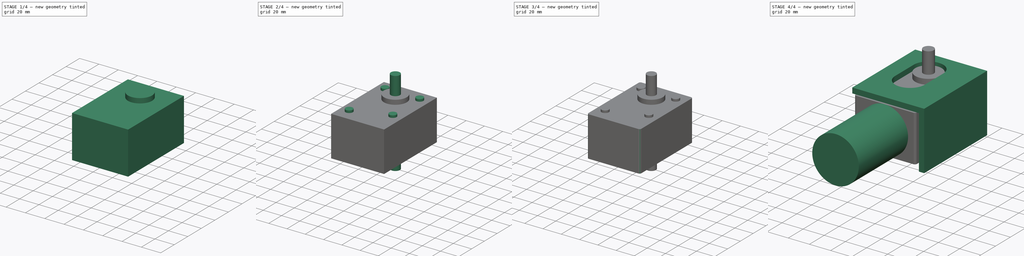
[diagram: build sequence overview — one tinted view per stage of 4, left to right]
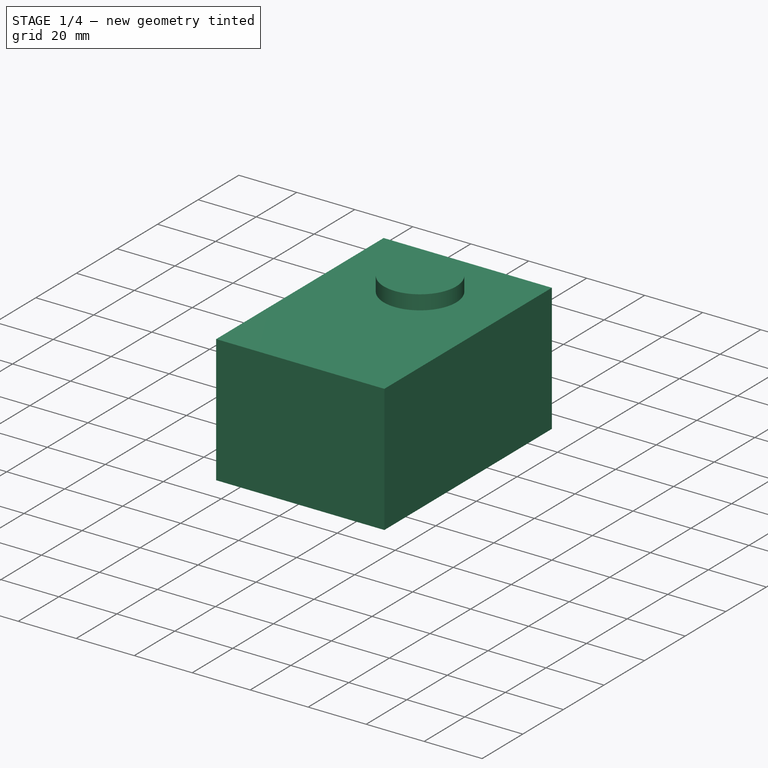
[diagram: stage 1 of 4 — iso view after this stage's code; geometry added in this stage tinted green]
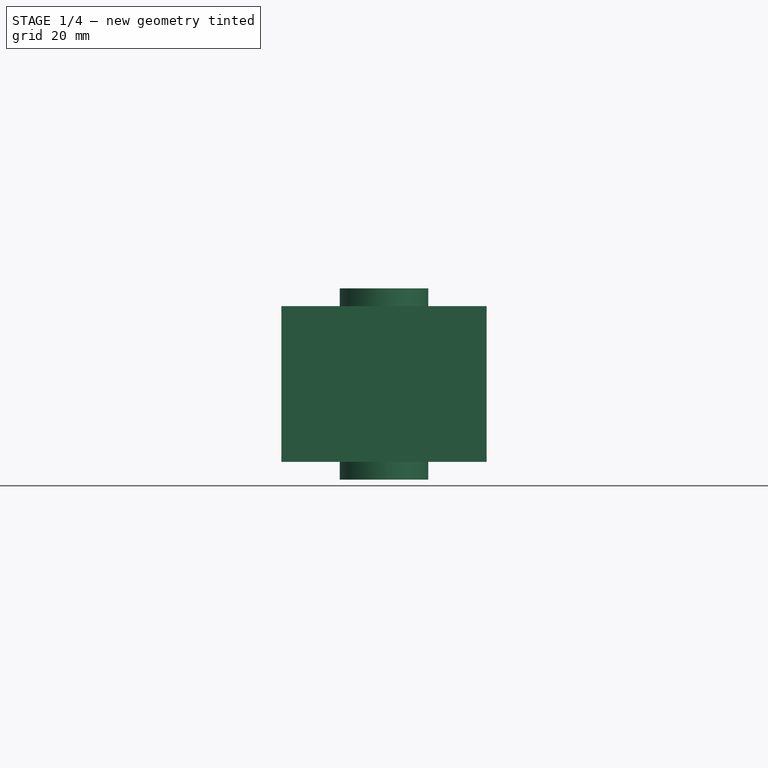
[diagram: stage 1 of 4 — front view after this stage's code; geometry added in this stage tinted green]
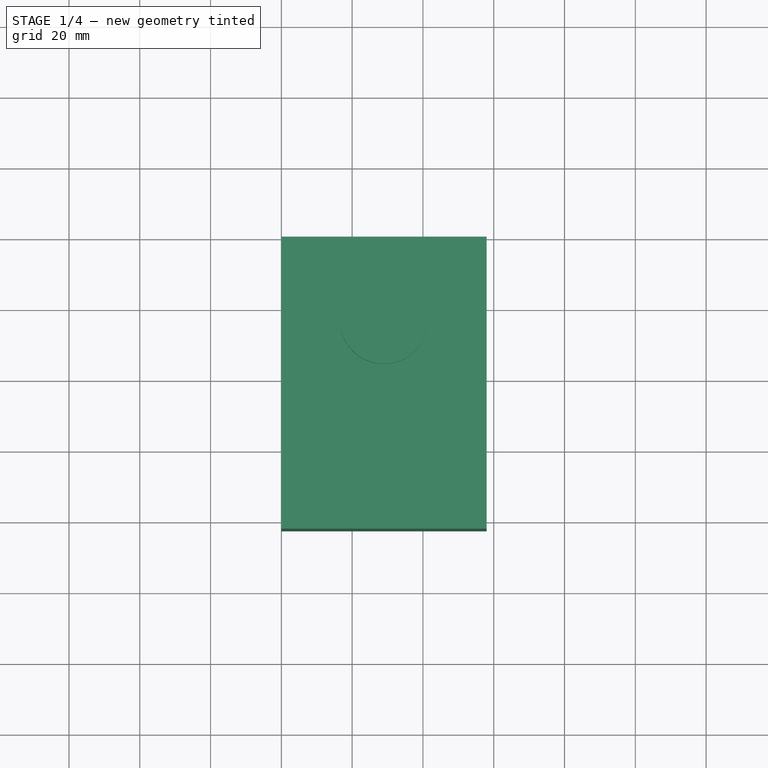
[diagram: stage 1 of 4 — top view after this stage's code; geometry added in this stage tinted green]
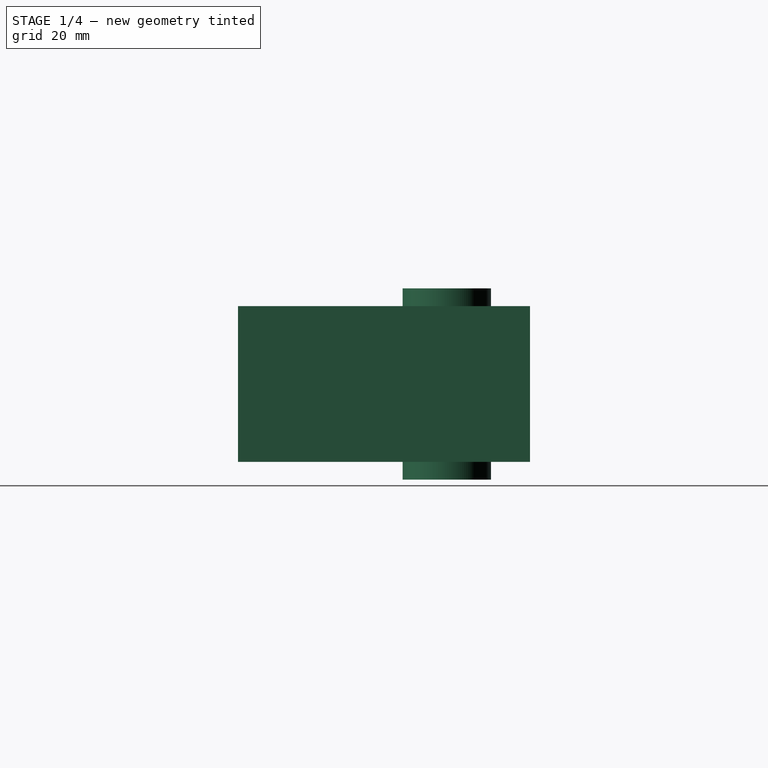
[diagram: stage 1 of 4 — right view after this stage's code; geometry added in this stage tinted green]
FCSTD DOCUMENT  (FreeCAD 0.20R29410 (Git))
Label: motor24v
License: All rights reserved
LicenseURL: http://en.wikipedia.org/wiki/All_rights_reserved
objects: Sketcher::SketchObject×7, PartDesign::Pad×7, PartDesign::Mirrored×3, App::Part×1, PartDesign::Fillet×1, PartDesign::Body×1
note: 27 computed .brp shape members not serialized (recipe doc carries the construction recipe); baked Part::Feature solids carry a one-line shape summary decoded from their .brp

FEATURE [App::Part] Part
  Origin = -> Origin
FEATURE [Sketcher::SketchObject] Sketch
  FullyConstrained = true
  MapMode = 5
  Support = -> [XY_Plane001]
  sketch-geometry (4):
    g0: LineSegment StartX=0 StartY=0 StartZ=0 EndX=58 EndY=0 EndZ=0
    g1: LineSegment StartX=58 StartY=0 StartZ=0 EndX=58 EndY=-82.5 EndZ=0
    g2: LineSegment StartX=58 StartY=-82.5 StartZ=0 EndX=0 EndY=-82.5 EndZ=0
    g3: LineSegment StartX=0 StartY=-82.5 StartZ=0 EndX=0 EndY=0 EndZ=0
  constraints (11):
    c: Coincident(g0,g1)
    c: Coincident(g1,g2)
    c: Coincident(g2,g3)
    c: Coincident(g3,g0)
    c: Horizontal(g0)
    c: Horizontal(g2)
    c: Vertical(g1)
    c: Vertical(g3)
    c: Coincident(g0,g-1)
    c: DistanceX(g0,g0) = 58
    c: DistanceY(g1,g1) = 82.5
FEATURE [PartDesign::Pad] Pad
  Direction = (0,0,1)
  Length = 22
  Length2 = 22
  Profile = -> Sketch
  ReferenceAxis = -> Sketch [N_Axis]
  Type = 4
FEATURE [Sketcher::SketchObject] Sketch001
  FullyConstrained = true
  MapMode = 5
  Placement = pos=(0,0,22) rot=(0,0,1;0rad)
  Support = -> [Pad]
  sketch-geometry (1):
    g0: Circle CenterX=29 CenterY=-23.5 CenterZ=0 NormalX=0 NormalY=0 NormalZ=1 AngleXU=0 Radius=12.5
  constraints (3):
    c: DistanceX(g-1,g0) = 29
    c: DistanceY(g0,g-1) = 23.5
    c: Diameter(g0) = 25
FEATURE [PartDesign::Pad] Pad001
  BaseFeature = -> Pad
  Direction = (0,0,1)
  Length = 5
  Length2 = 10
  Profile = -> Sketch001
  ReferenceAxis = -> Sketch001 [N_Axis]
  Type = 0
FEATURE [PartDesign::Mirrored] Mirrored
  BaseFeature = -> Pad001
  MirrorPlane = -> XY_Plane001
  Originals = -> [Pad001]
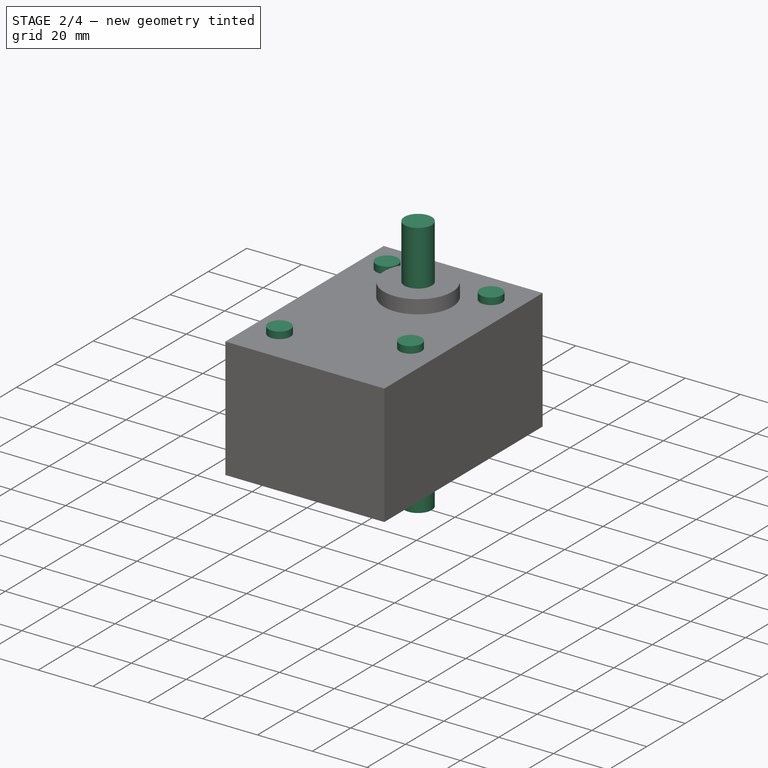
[diagram: stage 2 of 4 — iso view after this stage's code; geometry added in this stage tinted green]
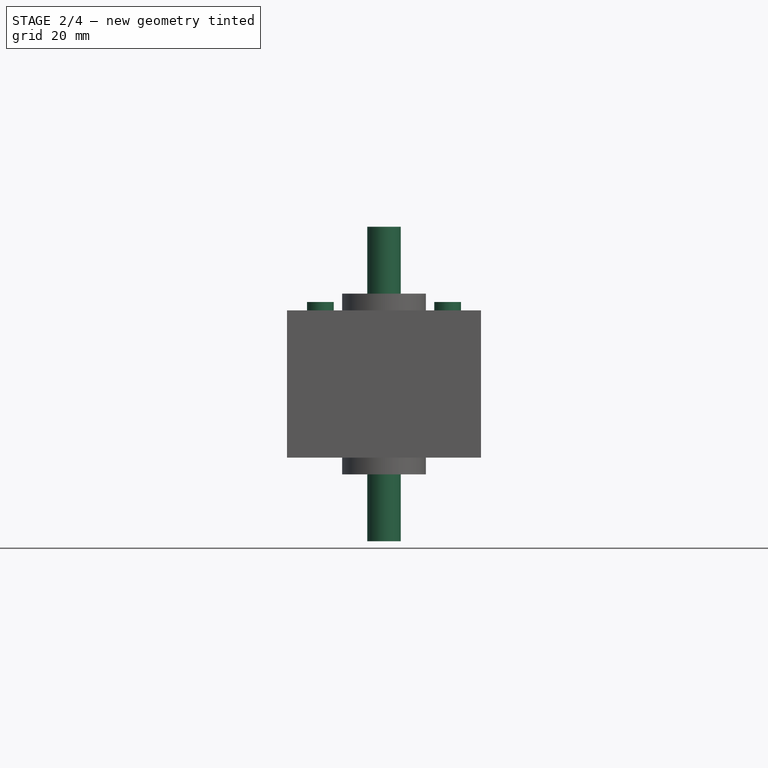
[diagram: stage 2 of 4 — front view after this stage's code; geometry added in this stage tinted green]
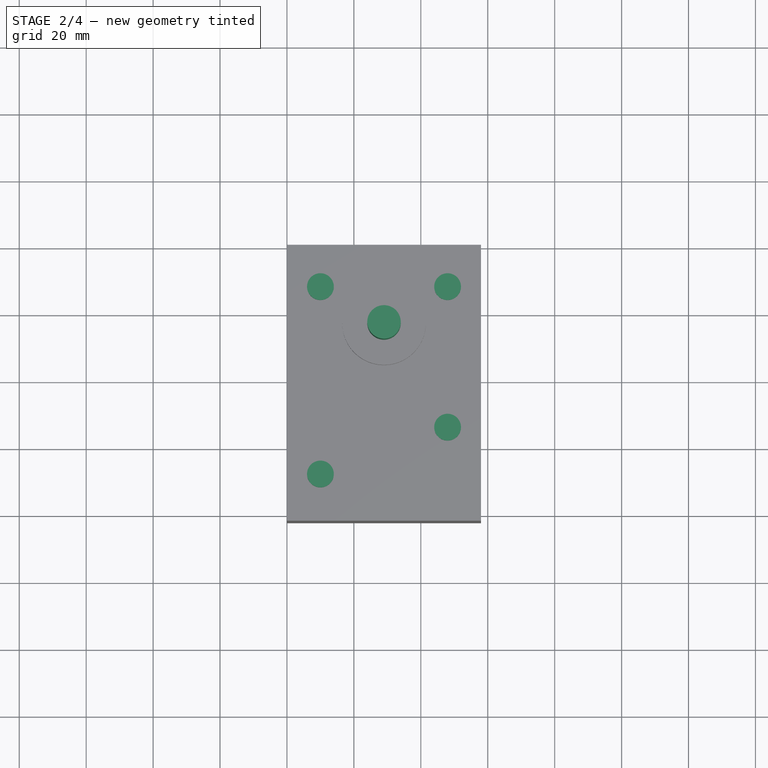
[diagram: stage 2 of 4 — top view after this stage's code; geometry added in this stage tinted green]
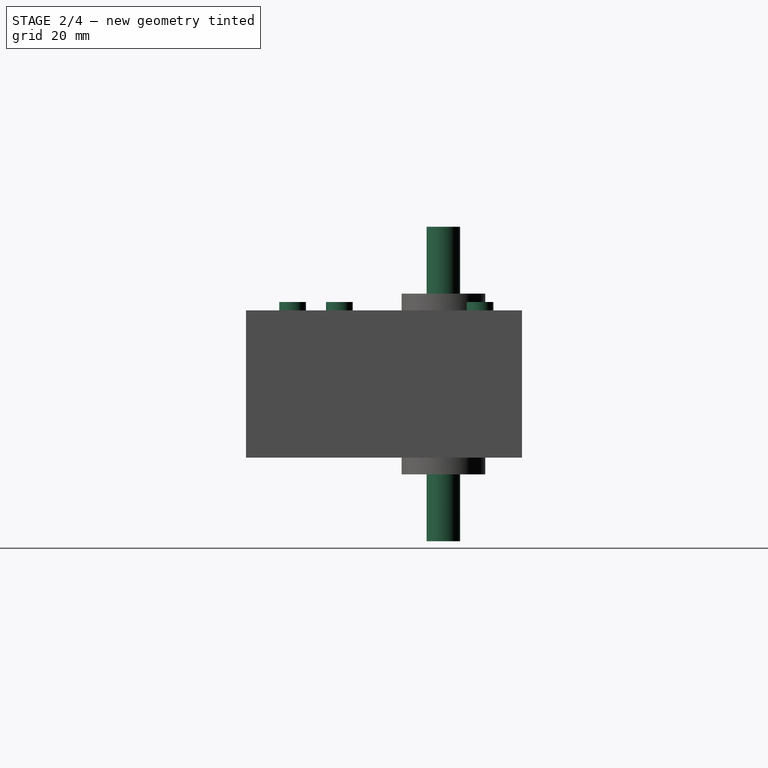
[diagram: stage 2 of 4 — right view after this stage's code; geometry added in this stage tinted green]
FEATURE [Sketcher::SketchObject] Sketch002
  FullyConstrained = true
  MapMode = 5
  Placement = pos=(0,0,27) rot=(0,0,1;0rad)
  Support = -> [Mirrored]
  sketch-geometry (1):
    g0: Circle CenterX=29 CenterY=-23.5 CenterZ=0 NormalX=0 NormalY=0 NormalZ=1 AngleXU=0 Radius=5
  constraints (3):
    c: Diameter(g0) = 10
    c: DistanceX(g-1,g0) = 29
    c: DistanceY(g0,g-1) = 23.5
FEATURE [PartDesign::Pad] Pad002
  BaseFeature = -> Mirrored
  Direction = (0,0,1)
  Length = 20
  Length2 = 10
  Profile = -> Sketch002
  ReferenceAxis = -> Sketch002 [N_Axis]
  Type = 0
FEATURE [PartDesign::Mirrored] Mirrored001
  BaseFeature = -> Pad002
  MirrorPlane = -> XY_Plane001
  Originals = -> [Pad002]
FEATURE [Sketcher::SketchObject] Sketch003
  FullyConstrained = true
  MapMode = 5
  Placement = pos=(0,0,22) rot=(0,0,1;0rad)
  Support = -> [Mirrored001]
  sketch-geometry (4):
    g0: Circle CenterX=10 CenterY=-12.57 CenterZ=0 NormalX=0 NormalY=0 NormalZ=1 AngleXU=0 Radius=4
    g1: Circle CenterX=48 CenterY=-12.57 CenterZ=0 NormalX=0 NormalY=0 NormalZ=1 AngleXU=0 Radius=4
    g2: Circle CenterX=10 CenterY=-68.57 CenterZ=0 NormalX=0 NormalY=0 NormalZ=1 AngleXU=0 Radius=4
    g3: Circle CenterX=48 CenterY=-54.57 CenterZ=0 NormalX=0 NormalY=0 NormalZ=1 AngleXU=0 Radius=4
  constraints (12):
    c: Diameter(g0) = 8
    c: Diameter(g1) = 8
    c: Diameter(g3) = 8
    c: Diameter(g2) = 8
    c: Vertical(g0,g2)
    c: Vertical(g1,g3)
    c: Horizontal(g1,g0)
    c: DistanceX(g-1,g0) = 10
    c: DistanceX(g0,g1) = 38
    c: DistanceY(g3,g1) = 42
    c: DistanceY(g2,g0) = 56
    c: DistanceY(g0,g-1) = 12.57
FEATURE [PartDesign::Pad] Pad003
  BaseFeature = -> Mirrored001
  Direction = (0,0,1)
  Length = 2.5
  Length2 = 10
  Profile = -> Sketch003
  ReferenceAxis = -> Sketch003 [N_Axis]
  Type = 0
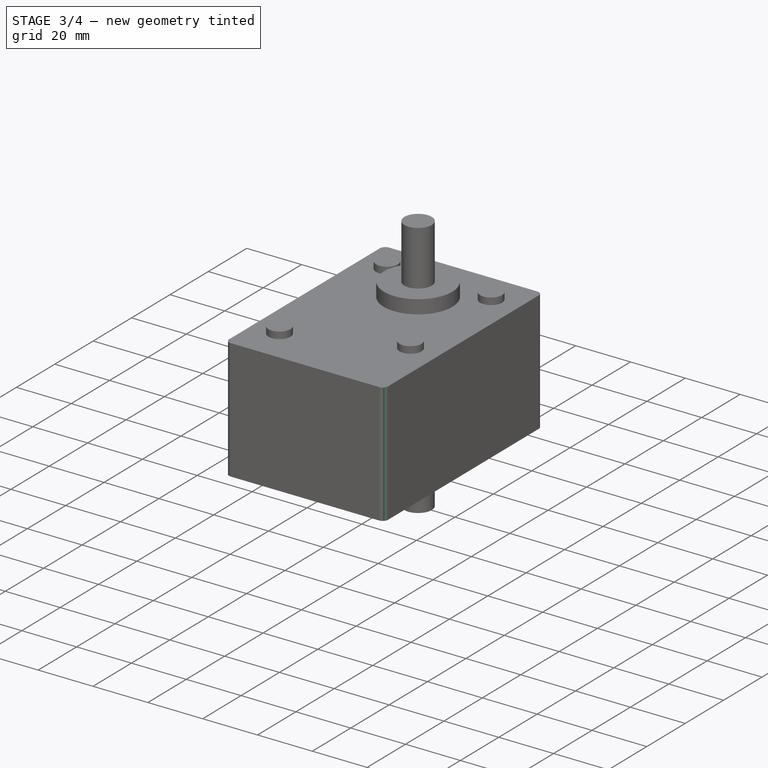
[diagram: stage 3 of 4 — iso view after this stage's code; geometry added in this stage tinted green]
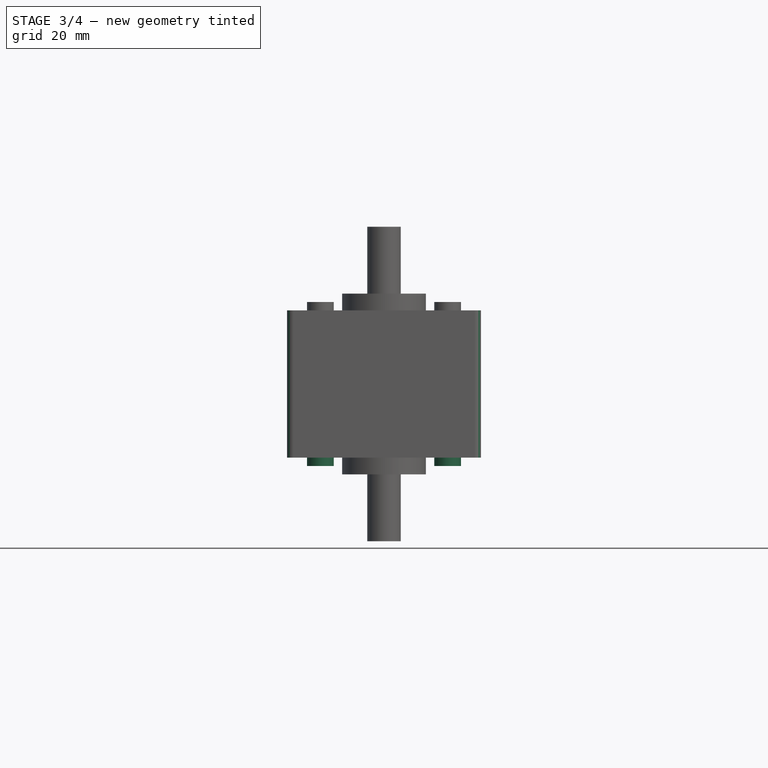
[diagram: stage 3 of 4 — front view after this stage's code; geometry added in this stage tinted green]
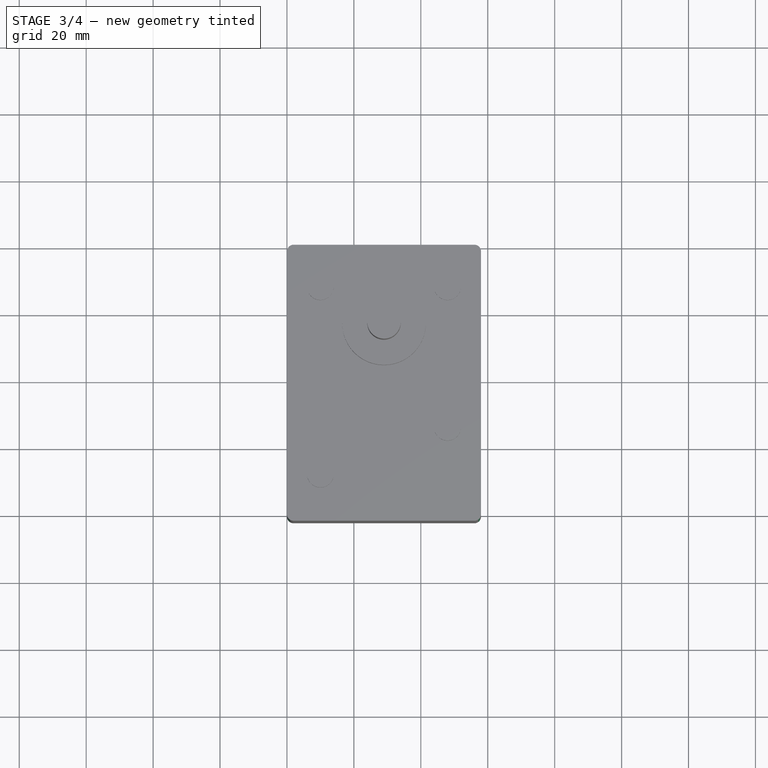
[diagram: stage 3 of 4 — top view after this stage's code; geometry added in this stage tinted green]
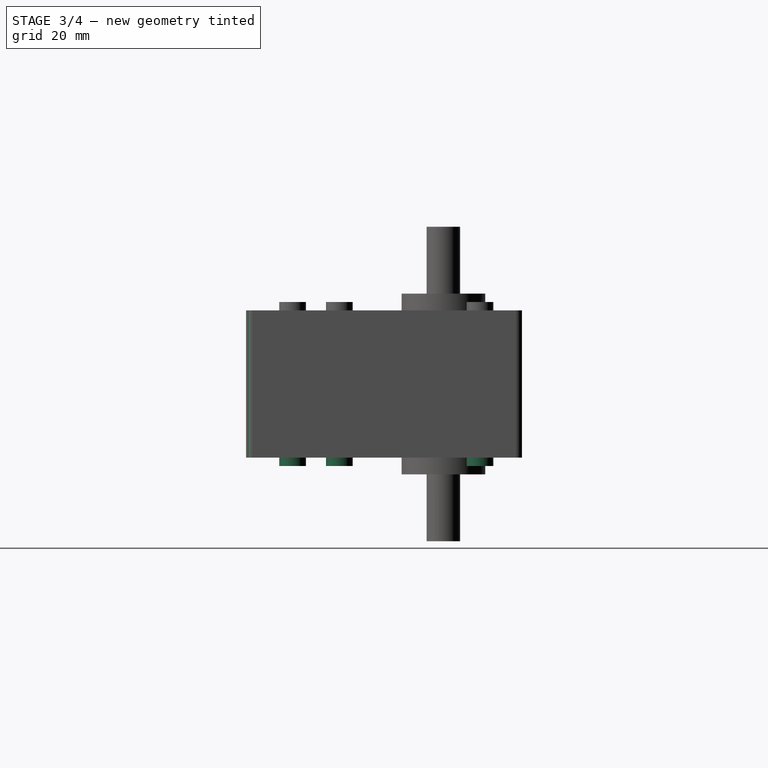
[diagram: stage 3 of 4 — right view after this stage's code; geometry added in this stage tinted green]
FEATURE [PartDesign::Mirrored] Mirrored002
  BaseFeature = -> Pad003
  MirrorPlane = -> XY_Plane001
  Originals = -> [Pad003]
FEATURE [PartDesign::Fillet] Fillet
  Base = -> Mirrored002 [Edge2,Edge1,Edge8,Edge5]
  BaseFeature = -> Mirrored002
  Radius = 2
  SupportTransform = false
  UseAllEdges = false
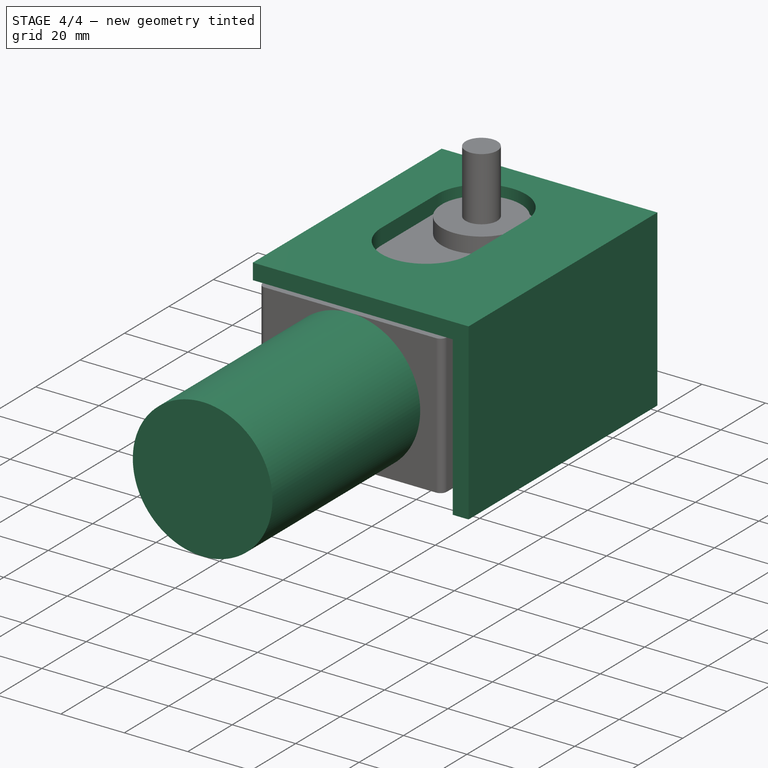
[diagram: stage 4 of 4 — iso view after this stage's code; geometry added in this stage tinted green]
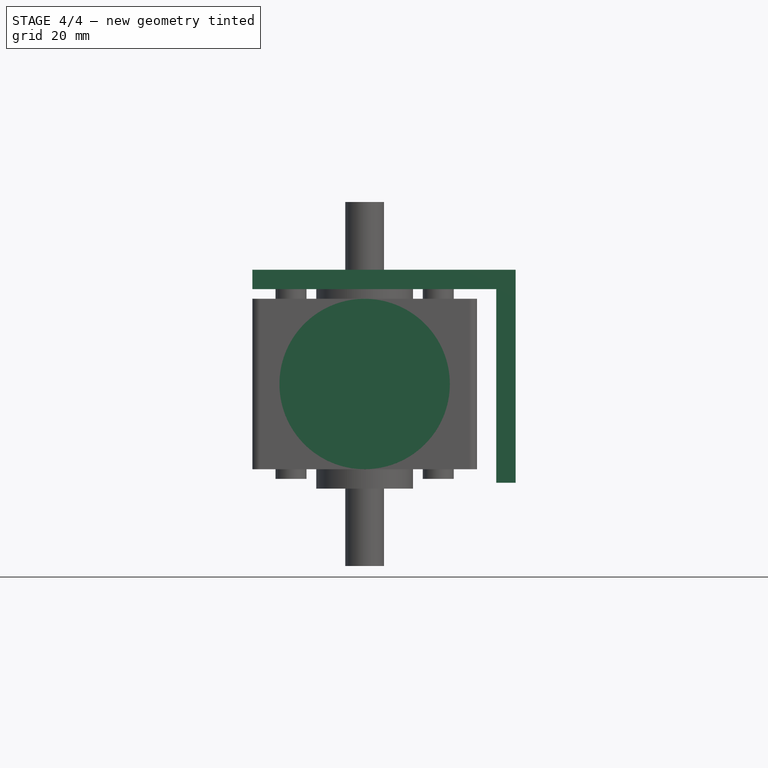
[diagram: stage 4 of 4 — front view after this stage's code; geometry added in this stage tinted green]
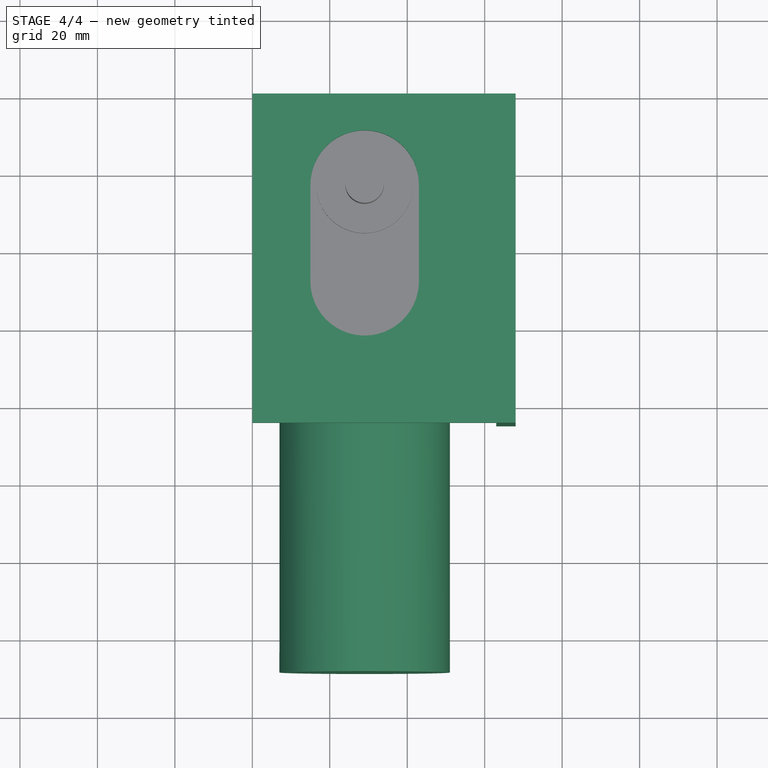
[diagram: stage 4 of 4 — top view after this stage's code; geometry added in this stage tinted green]
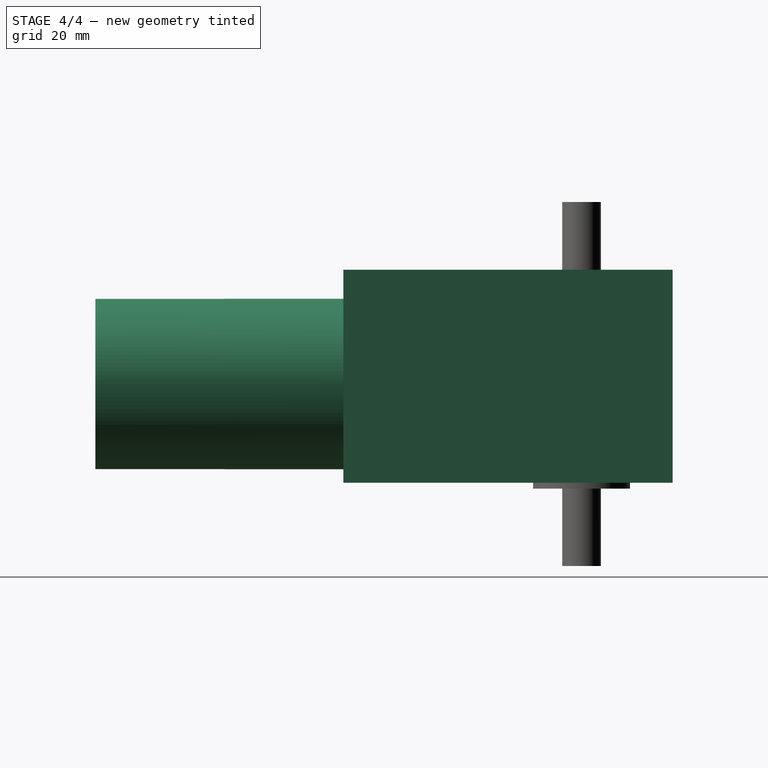
[diagram: stage 4 of 4 — right view after this stage's code; geometry added in this stage tinted green]
FEATURE [Sketcher::SketchObject] Sketch004
  FullyConstrained = true
  MapMode = 5
  Placement = pos=(0,-82.5,0) rot=(1,0,0;1.5708rad)
  Support = -> [Fillet]
  sketch-geometry (1):
    g0: Circle CenterX=29 CenterY=0 CenterZ=0 NormalX=0 NormalY=0 NormalZ=1 AngleXU=0 Radius=22
  constraints (3):
    c: PointOnObject(g0,g-1)
    c: Diameter(g0) = 44
    c: DistanceX(g-1,g0) = 29
FEATURE [PartDesign::Pad] Pad004
  BaseFeature = -> Fillet
  Direction = (0,-1,2e-16)
  Length = 66.53
  Length2 = 10
  Profile = -> Sketch004
  ReferenceAxis = -> Sketch004 [N_Axis]
  Type = 0
FEATURE [Sketcher::SketchObject] Sketch005
  FullyConstrained = true
  MapMode = 5
  Placement = pos=(0,0,24.5) rot=(0,0,1;0rad)
  Support = -> [Pad004]
  sketch-geometry (8):
    g0: LineSegment StartX=0 StartY=0 StartZ=0 EndX=68 EndY=0 EndZ=0
    g1: LineSegment StartX=68 StartY=0 StartZ=0 EndX=68 EndY=-85 EndZ=0
    g2: LineSegment StartX=68 StartY=-85 StartZ=0 EndX=0 EndY=-85 EndZ=0
    g3: LineSegment StartX=0 StartY=-85 StartZ=0 EndX=0 EndY=0 EndZ=0
    g4: ArcOfCircle CenterX=29 CenterY=-23.5 CenterZ=0 NormalX=0 NormalY=0 NormalZ=1 AngleXU=0 Radius=14 StartAngle=1e-16 EndAngle=3.14159
    g5: ArcOfCircle CenterX=29 CenterY=-48.5 CenterZ=0 NormalX=0 NormalY=0 NormalZ=1 AngleXU=0 Radius=14 StartAngle=3.14159 EndAngle=6.28319
    g6: LineSegment StartX=15 StartY=-23.5 StartZ=0 EndX=15 EndY=-48.5 EndZ=0
    g7: LineSegment StartX=43 StartY=-48.5 StartZ=0 EndX=43 EndY=-23.5 EndZ=0
  constraints (21):
    c: Coincident(g0,g1)
    c: Coincident(g1,g2)
    c: Coincident(g2,g3)
    c: Coincident(g3,g0)
    c: Horizontal(g0)
    c: Horizontal(g2)
    c: Vertical(g1)
    c: Vertical(g3)
    c: Coincident(g0,g-1)
    c: DistanceX(g0,g0) = 68
    c: DistanceY(g1,g1) = 85
    c: Tangent(g4,g6) = -1.5708
    c: Tangent(g6,g5) = -1.5708
    c: Tangent(g5,g7) = -1.5708
    c: Tangent(g7,g4) = -1.5708
    c: Equal(g4,g5)
    c: Vertical(g6)
    c: Radius(g4) = 14
    c: DistanceX(g0,g4) = 29
    c: DistanceY(g4,g0) = 23.5
    c: DistanceY(g5,g4) = 25
FEATURE [PartDesign::Pad] Pad005
  BaseFeature = -> Pad004
  Direction = (0,0,1)
  Length = 5
  Length2 = 10
  Profile = -> Sketch005
  ReferenceAxis = -> Sketch005 [N_Axis]
  Type = 0
FEATURE [Sketcher::SketchObject] Sketch006
  FullyConstrained = true
  MapMode = 5
  Placement = pos=(0,0,24.5) rot=(1,0,0;3.14159rad)
  Support = -> [Pad005]
  sketch-geometry (4):
    g0: LineSegment StartX=68 StartY=0 StartZ=0 EndX=63 EndY=0 EndZ=0
    g1: LineSegment StartX=63 StartY=0 StartZ=0 EndX=63 EndY=85 EndZ=0
    g2: LineSegment StartX=63 StartY=85 StartZ=0 EndX=68 EndY=85 EndZ=0
    g3: LineSegment StartX=68 StartY=85 StartZ=0 EndX=68 EndY=0 EndZ=0
  constraints (12):
    c: Coincident(g0,g1)
    c: Coincident(g1,g2)
    c: Coincident(g2,g3)
    c: Coincident(g3,g0)
    c: Horizontal(g0)
    c: Horizontal(g2)
    c: Vertical(g1)
    c: Vertical(g3)
    c: PointOnObject(g0,g-1)
    c: DistanceY(g3,g3) = 85
    c: DistanceX(g0,g0) = 5
    c: DistanceX(g-1,g0) = 63
FEATURE [PartDesign::Pad] Pad006
  BaseFeature = -> Pad005
  Direction = (0,0,-1)
  Length = 50
  Length2 = 10
  Profile = -> Sketch006
  ReferenceAxis = -> Sketch006 [N_Axis]
  Type = 0
FEATURE [PartDesign::Body] Body
  Group = -> [Sketch,Pad,Sketch001,Pad001,Mirrored,Sketch002,Pad002,Mirrored001,Sketch003,Pad003,Mirrored002,Fillet,Sketch004,Pad004,Sketch005,Pad005,Sketch006,Pad006]
  Origin = -> Origin001
  Tip = -> Pad006
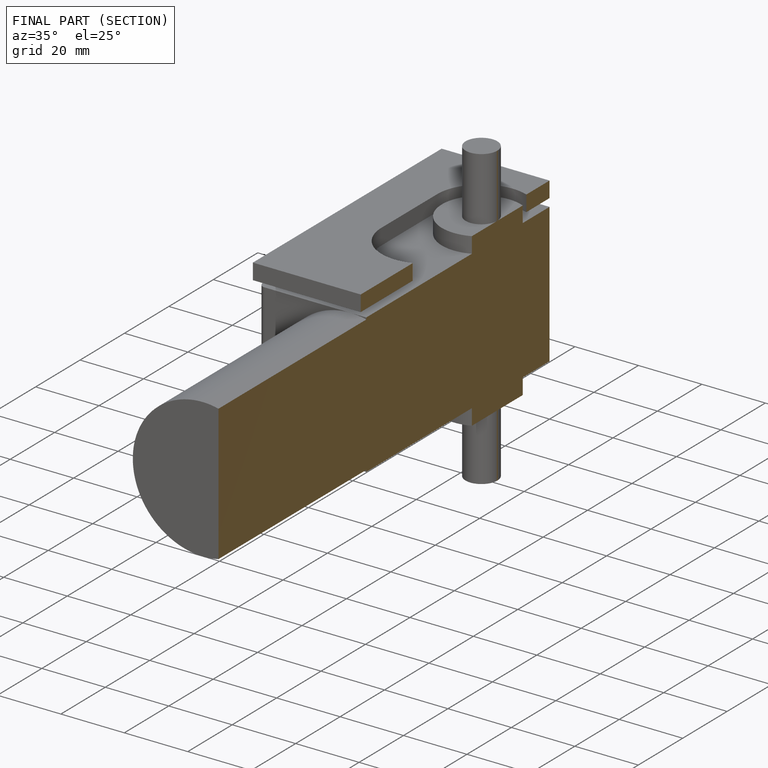
[diagram: finished part — half-section view (interior)]
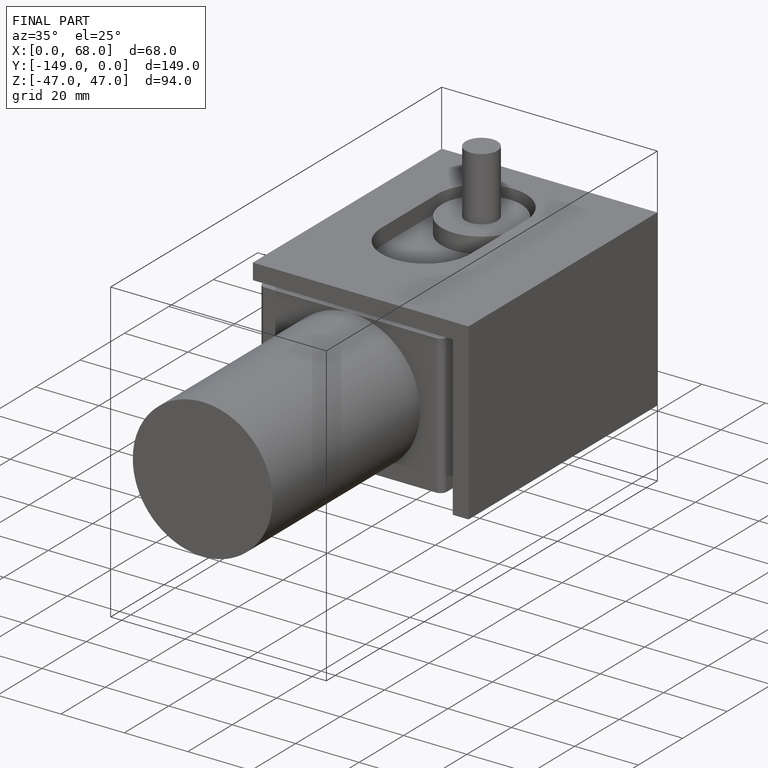
[diagram: finished part — iso view with bounding-box wireframe]
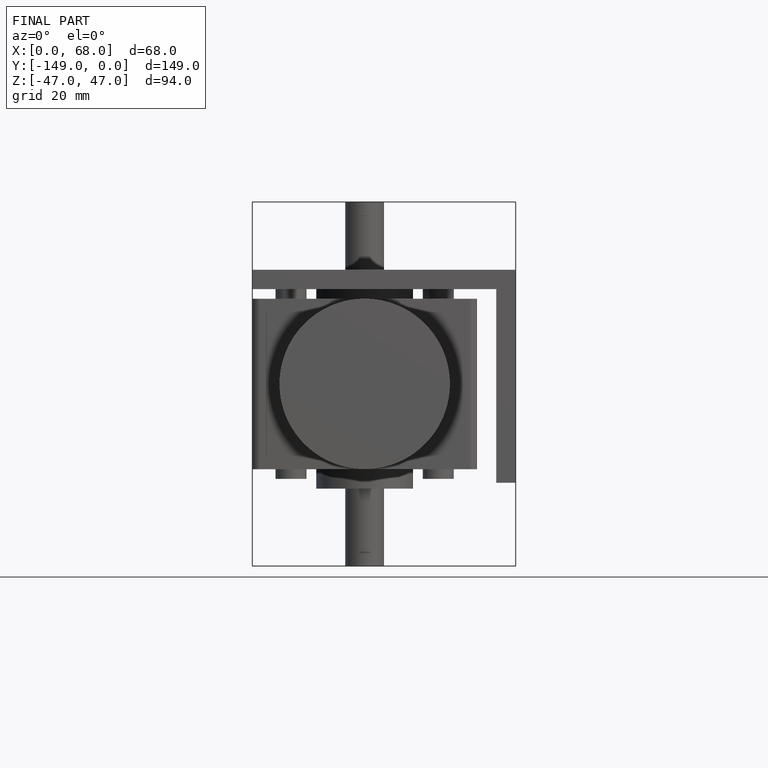
[diagram: finished part — front view with bounding-box wireframe]
